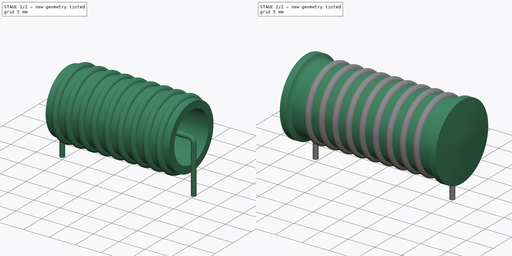
[diagram: build sequence overview — one tinted view per stage of 2, left to right]
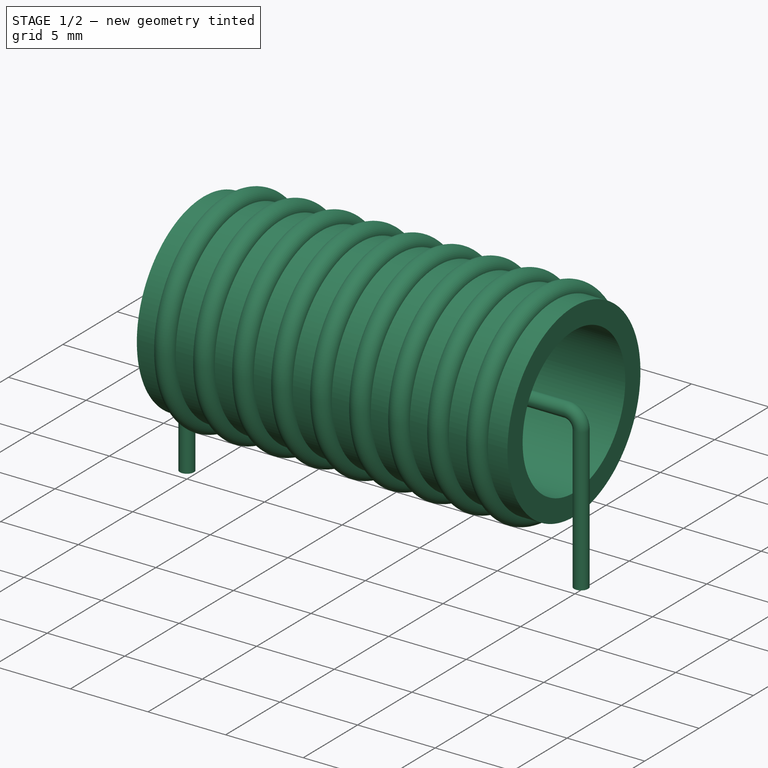
[diagram: stage 1 of 2 — iso view after this stage's code; geometry added in this stage tinted green]
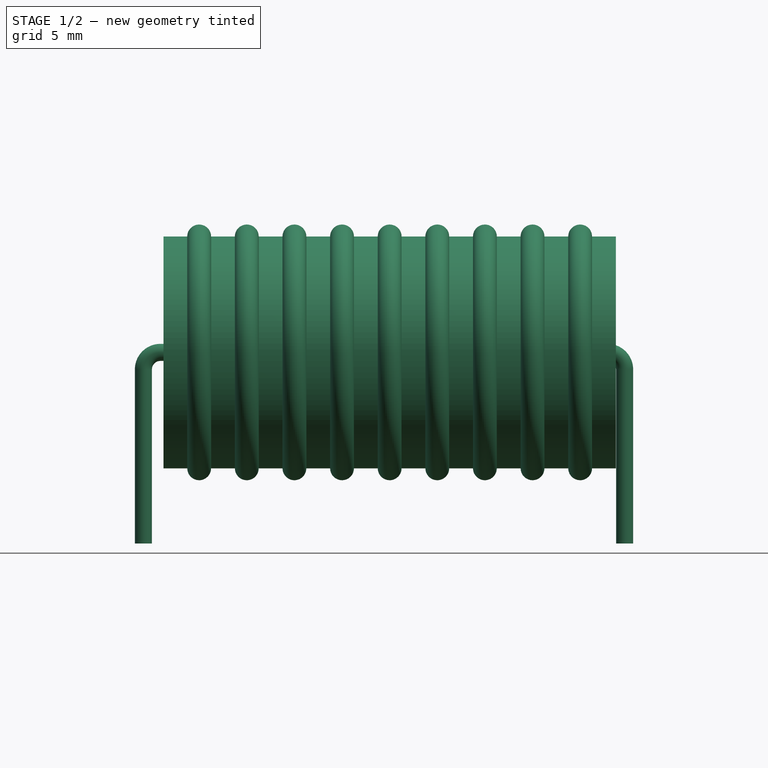
[diagram: stage 1 of 2 — front view after this stage's code; geometry added in this stage tinted green]
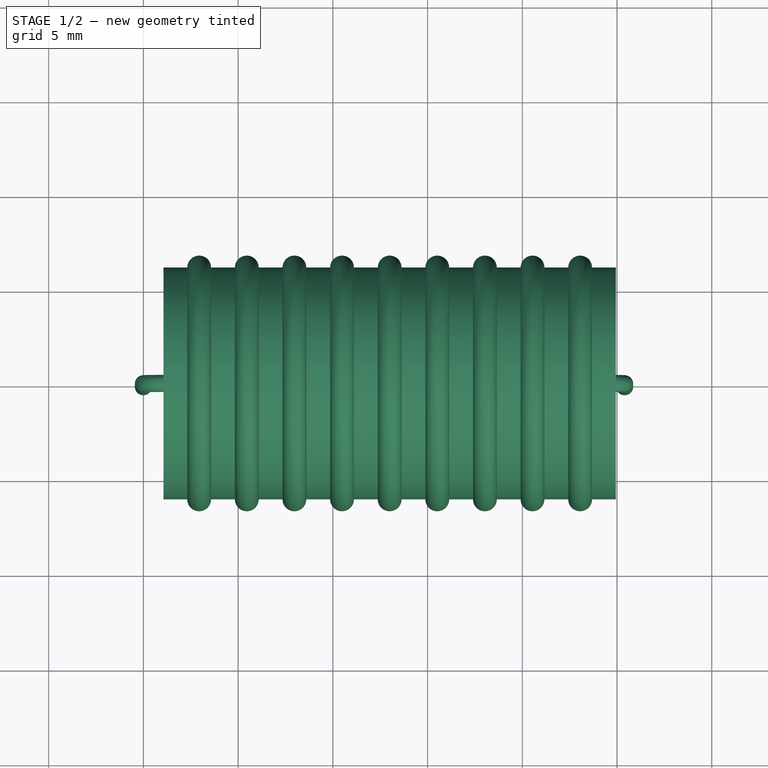
[diagram: stage 1 of 2 — top view after this stage's code; geometry added in this stage tinted green]
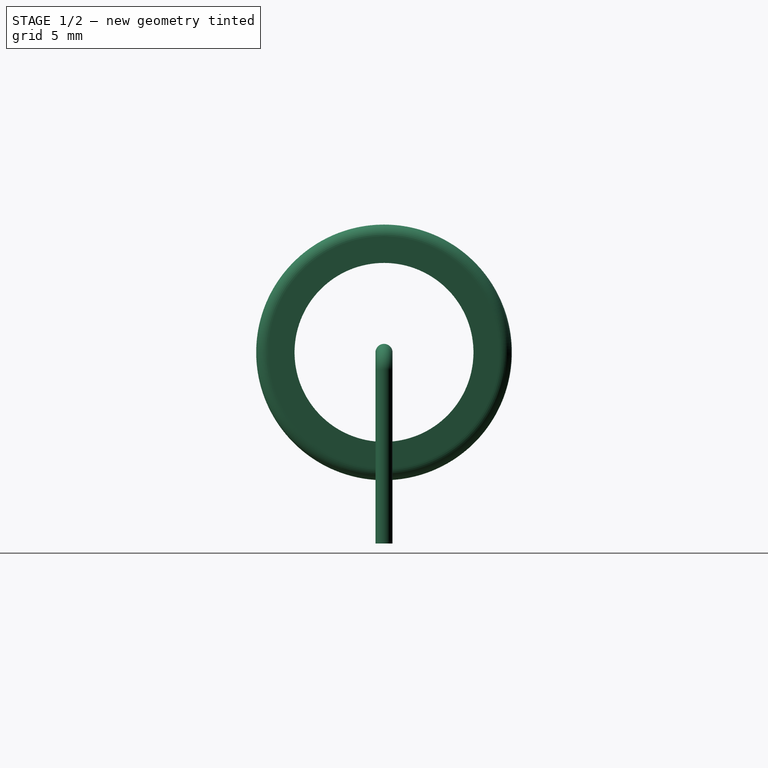
[diagram: stage 1 of 2 — right view after this stage's code; geometry added in this stage tinted green]
FCSTD DOCUMENT  (FreeCAD 0.16R6703 (Git))
Label: L_Axial_L29.9mm_D14.0mm_P25.40mm_Horizontal_Vishay_IHA-105
License: All rights reserved
LicenseURL: http://en.wikipedia.org/wiki/All_rights_reserved
objects: Sketcher::SketchObject×4, PartDesign::Revolution×2, Spreadsheet::Sheet×1, Part::Sweep×1
note: 9 computed .brp shape members not serialized (recipe doc carries the construction recipe); baked Part::Feature solids carry a one-line shape summary decoded from their .brp

FEATURE [Spreadsheet::Sheet] Spreadsheet  label="dimensions"
  cells = A1=L; B1(L)=29.85; A2=d; B2(d)=13.97; C2=0; A3=RM; B3(RM)=25.4; C3=0; A4=d_wire; B4(d_wire)=0.8999999999999999
FEATURE [Sketcher::SketchObject] Sketch
  Placement = pos=(0,0,-2) rot=(0,0,1;0rad)
  expr: Constraints[1] = dimensions.d_wire / 2
  sketch-geometry (1):
    g0: Circle CenterX=0 CenterY=0 CenterZ=0 NormalX=0 NormalY=0 NormalZ=1 Radius=0.45
  constraints (2):
    c: Coincident(g0,g-1)
    c: Radius(g0) = 0.45
FEATURE [Part::Sweep] Sweep
  Frenet = false
  Sections = -> [Sketch]
  Solid = true
  Spine = -> Sketch001
  Transition = 1
FEATURE [Sketcher::SketchObject] Sketch003  label="Axis001"
  Placement = pos=(0,0,0) rot=(1,0,0;1.5708rad)
  expr: Constraints[83] = dimensions.L * 0.8 / 19
  expr: Constraints[81] = dimensions.L * 0.8 / 19 / 2
  expr: Constraints[62] = dimensions.d / 2 - dimensions.L * 0.029
  expr: Constraints[70] = dimensions.d * 0.1
  expr: Constraints[78] = dimensions.L * 0.8 / 19 / 2
  expr: Constraints[6] = dimensions.d / 2 + 0.1
  expr: Constraints[72] = dimensions.L * 0.08500000000000001
  expr: Constraints[76] = dimensions.L * 0.8 / 19 / 2
  expr: Constraints[37] = dimensions.L * 0.8 / 19 / 2
  expr: Constraints[5] = (dimensions.RM - dimensions.L * 0.95) / 2
  expr: Constraints[75] = dimensions.L * 0.8 / 19 / 2
  expr: Constraints[80] = dimensions.L * 0.8 / 19 / 2
  expr: Constraints[79] = dimensions.L * 0.8 / 19 / 2
  expr: Constraints[82] = dimensions.L * 0.8 / 19 / 2
  expr: Constraints[77] = dimensions.L * 0.8 / 19 / 2
  sketch-geometry (26):
    g0: LineSegment [constr] StartX=-1.47875 StartY=7.085 StartZ=0 EndX=-1.47875 EndY=0 EndZ=0
    g1: LineSegment [constr] StartX=-1.47875 StartY=0 StartZ=0 EndX=0 EndY=0 EndZ=0
    g2: LineSegment [constr] StartX=106.607 StartY=-10.5398 StartZ=0 EndX=-91.3675 EndY=-10.5398 EndZ=0
    g3: LineSegment [constr] StartX=-1.47875 StartY=7.085 StartZ=0 EndX=7.92625 EndY=7.085 EndZ=0
    g4: ArcOfCircle CenterX=2.94376 CenterY=13.2043 CenterZ=0 NormalX=0 NormalY=0 NormalZ=1 Radius=0.628421 StartAngle=0 EndAngle=3.14159
    g5: ArcOfCircle CenterX=5.45745 CenterY=13.2043 CenterZ=0 NormalX=0 NormalY=0 NormalZ=1 Radius=0.628421 StartAngle=0 EndAngle=3.14159
    g6: ArcOfCircle CenterX=7.97113 CenterY=13.2043 CenterZ=0 NormalX=0 NormalY=0 NormalZ=1 Radius=0.628421 StartAngle=0 EndAngle=3.14159
    g7: ArcOfCircle CenterX=10.4848 CenterY=13.2043 CenterZ=0 NormalX=0 NormalY=0 NormalZ=1 Radius=0.628421 StartAngle=0 EndAngle=3.14159
    g8: ArcOfCircle CenterX=12.9985 CenterY=13.2043 CenterZ=0 NormalX=0 NormalY=0 NormalZ=1 Radius=0.628421 StartAngle=0 EndAngle=3.14159
    g9: ArcOfCircle CenterX=15.5122 CenterY=13.2043 CenterZ=0 NormalX=0 NormalY=0 NormalZ=1 Radius=0.628421 StartAngle=0 EndAngle=3.14159
    g10: ArcOfCircle CenterX=18.0259 CenterY=13.2043 CenterZ=0 NormalX=0 NormalY=0 NormalZ=1 Radius=0.628421 StartAngle=0 EndAngle=3.14159
    g11: ArcOfCircle CenterX=20.5396 CenterY=13.2043 CenterZ=0 NormalX=0 NormalY=0 NormalZ=1 Radius=0.628421 StartAngle=0 EndAngle=3.14159
    g12: ArcOfCircle CenterX=23.0532 CenterY=13.2043 CenterZ=0 NormalX=0 NormalY=0 NormalZ=1 Radius=0.628421 StartAngle=0 EndAngle=3.14159
    g13: LineSegment StartX=1.0585 StartY=13.2043 StartZ=0 EndX=2.31534 EndY=13.2043 EndZ=0
    g14: LineSegment StartX=3.57218 StartY=13.2043 StartZ=0 EndX=4.82903 EndY=13.2043 EndZ=0
    g15: LineSegment StartX=6.08587 StartY=13.2043 StartZ=0 EndX=7.34271 EndY=13.2043 EndZ=0
    g16: LineSegment StartX=8.59955 StartY=13.2043 StartZ=0 EndX=9.85639 EndY=13.2043 EndZ=0
    g17: LineSegment StartX=11.1132 StartY=13.2043 StartZ=0 EndX=12.3701 EndY=13.2043 EndZ=0
    g18: LineSegment StartX=13.6269 StartY=13.2043 StartZ=0 EndX=14.8838 EndY=13.2043 EndZ=0
    g19: LineSegment StartX=16.1406 StartY=13.2043 StartZ=0 EndX=17.3974 EndY=13.2043 EndZ=0
    g20: LineSegment StartX=18.6543 StartY=13.2043 StartZ=0 EndX=19.9111 EndY=13.2043 EndZ=0
    g21: LineSegment StartX=21.168 StartY=13.2043 StartZ=0 EndX=22.4248 EndY=13.2043 EndZ=0
    g22: LineSegment StartX=23.6817 StartY=13.2043 StartZ=0 EndX=24.9385 EndY=13.2043 EndZ=0
    g23: LineSegment StartX=1.0585 StartY=13.2043 StartZ=0 EndX=1.0585 EndY=11.8073 EndZ=0
    g24: LineSegment StartX=1.0585 StartY=11.8073 StartZ=0 EndX=24.9385 EndY=11.8073 EndZ=0
    g25: LineSegment StartX=24.9385 StartY=11.8073 StartZ=0 EndX=24.9385 EndY=13.2043 EndZ=0
  constraints (84):
    c: DistanceX(g0,g3) = 9.405
    c: Vertical(g0)
    c: Coincident(g1,g0)
    c: Coincident(g1,g-1)
    c: Horizontal(g1)
    c: DistanceX(g1,g1) = -1.47875
    c: DistanceY(g0,g0) = 7.085
    c: Coincident(g13,g4)
    c: Coincident(g14,g4)
    c: Coincident(g14,g5)
    c: Coincident(g15,g5)
    c: Coincident(g15,g6)
    c: Coincident(g16,g6)
    c: Coincident(g16,g7)
    c: Coincident(g17,g7)
    c: Coincident(g17,g8)
    c: Horizontal(g17)
    c: Coincident(g18,g8)
    c: Coincident(g18,g9)
    c: Coincident(g19,g9)
    c: Coincident(g19,g10)
    c: Coincident(g20,g11)
    c: Horizontal(g20)
    c: Coincident(g21,g11)
    c: Coincident(g21,g12)
    c: Horizontal(g21)
    c: Horizontal(g22)
    c: Equal(g14,g13)
    c: Equal(g13,g15)
    c: Equal(g15,g16)
    c: Equal(g16,g17)
    c: Equal(g17,g18)
    c: Equal(g18,g19)
    c: Equal(g19,g20)
    c: Equal(g20,g21)
    c: Equal(g21,g22)
    c: Coincident(g10,g20)
    c: Radius(g8) = 0.628421
    c: Coincident(g22,g12)
    c: Horizontal(g14)
    c: Horizontal(g15)
    c: Horizontal(g16)
    c: Horizontal(g18)
    c: Horizontal(g19)
    c: DistanceY(g12,g12) = 0
    c: DistanceY(g11,g11) = 0
    c: DistanceY(g10,g10) = 0
    c: DistanceY(g9,g9) = 0
    c: DistanceY(g8,g8) = 0
    c: DistanceY(g7,g7) = 0
    c: DistanceY(g4,g4) = 0
    c: DistanceY(g5,g5) = 0
    c: DistanceY(g4,g4) = 0
    c: DistanceY(g5,g5) = 0
    c: DistanceY(g6,g6) = 0
    c: DistanceY(g6,g6) = 0
    c: DistanceY(g7,g7) = 0
    c: DistanceY(g8,g8) = 0
    c: DistanceY(g9,g9) = 0
    c: DistanceY(g10,g10) = 0
    c: DistanceY(g11,g11) = 0
    c: DistanceY(g12,g12) = 0
    c: DistanceY(g0,g13) = 6.11935
    c: Horizontal(g13)
    c: Coincident(g23,g13)
    c: Vertical(g23)
    c: Horizontal(g24)
    c: Coincident(g25,g24)
    c: Coincident(g25,g22)
    c: Vertical(g25)
    c: DistanceY(g24,g22) = 1.397
    c: Coincident(g23,g24)
    c: DistanceX(g0,g23) = 2.53725
    c: Horizontal(g3)
    c: Coincident(g3,g0)
    c: Radius(g4) = 0.628421
    c: Radius(g5) = 0.628421
    c: Radius(g6) = 0.628421
    c: Radius(g7) = 0.628421
    c: Radius(g10) = 0.628421
    c: Radius(g9) = 0.628421
    c: Radius(g11) = 0.628421
    c: Radius(g12) = 0.628421
    c: DistanceX(g13,g13) = 1.25684
FEATURE [PartDesign::Revolution] Revolution001
  Angle = 360
  Axis = (9.405,0,0)
  Base = (-1.47875,0,7.085)
  Placement = pos=(0,0,0) rot=(1,0,0;1.5708rad)
  ReferenceAxis = -> Sketch003 [Axis3]
  Sketch = -> Sketch003
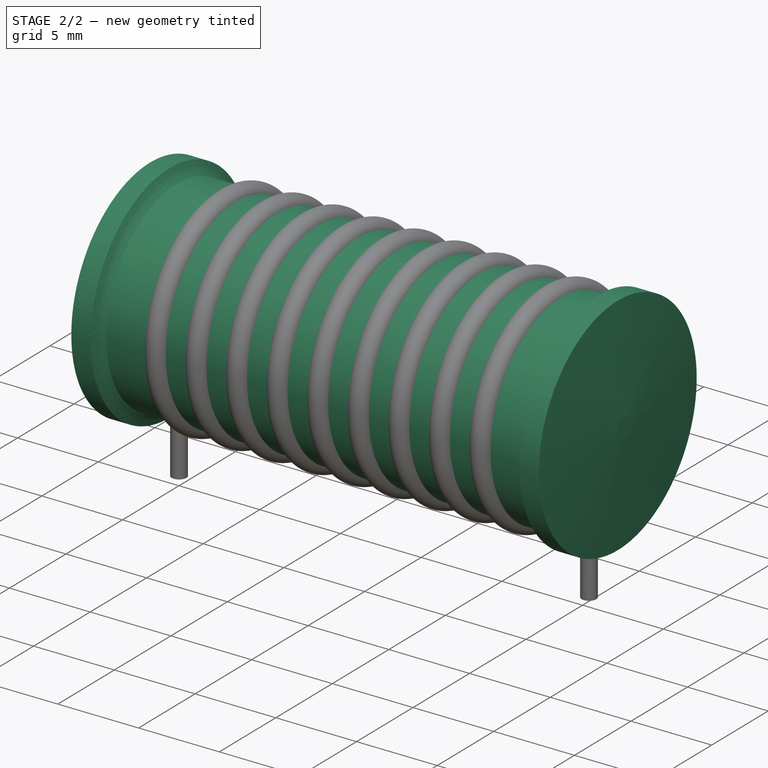
[diagram: stage 2 of 2 — iso view after this stage's code; geometry added in this stage tinted green]
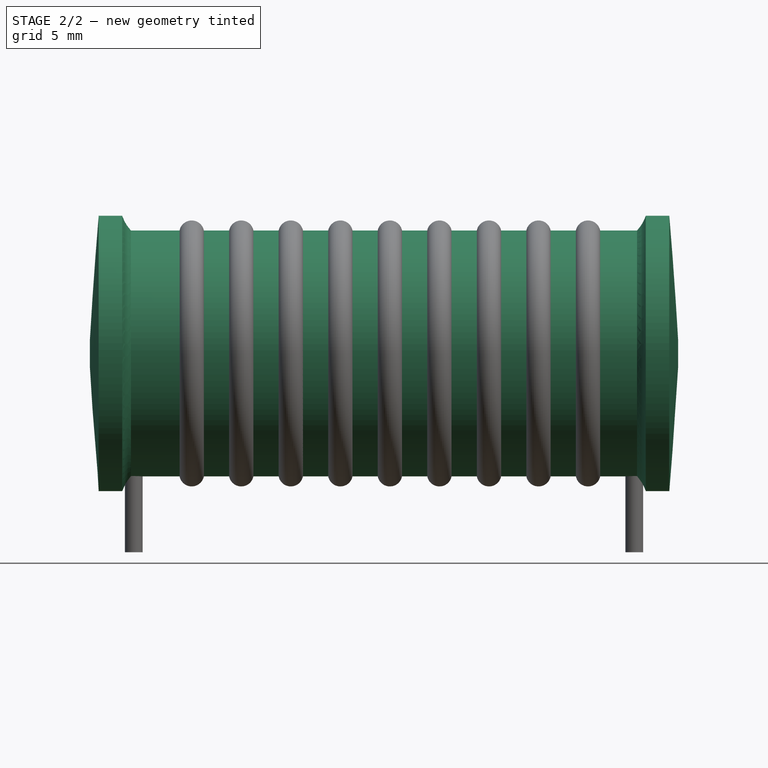
[diagram: stage 2 of 2 — front view after this stage's code; geometry added in this stage tinted green]
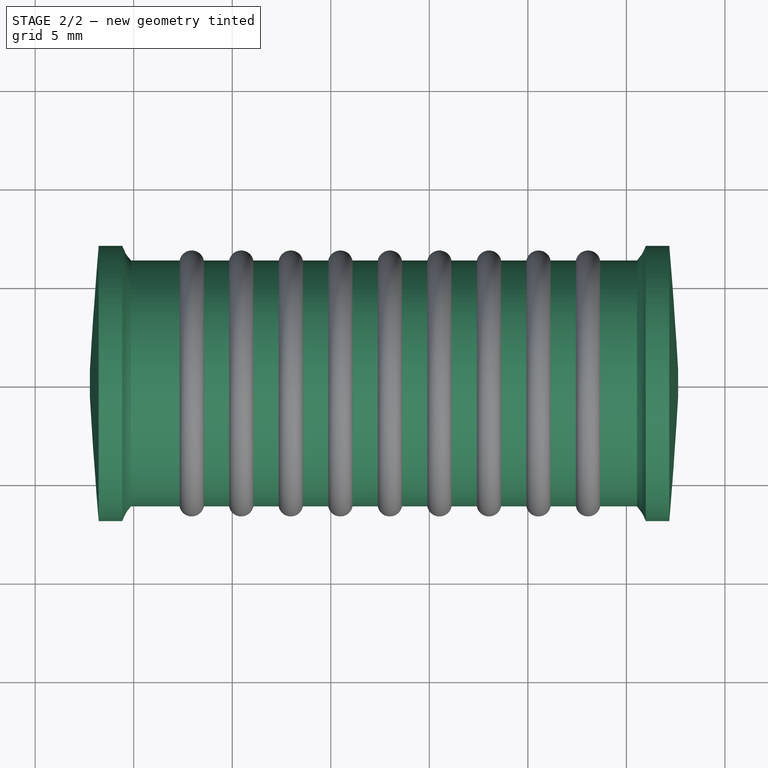
[diagram: stage 2 of 2 — top view after this stage's code; geometry added in this stage tinted green]
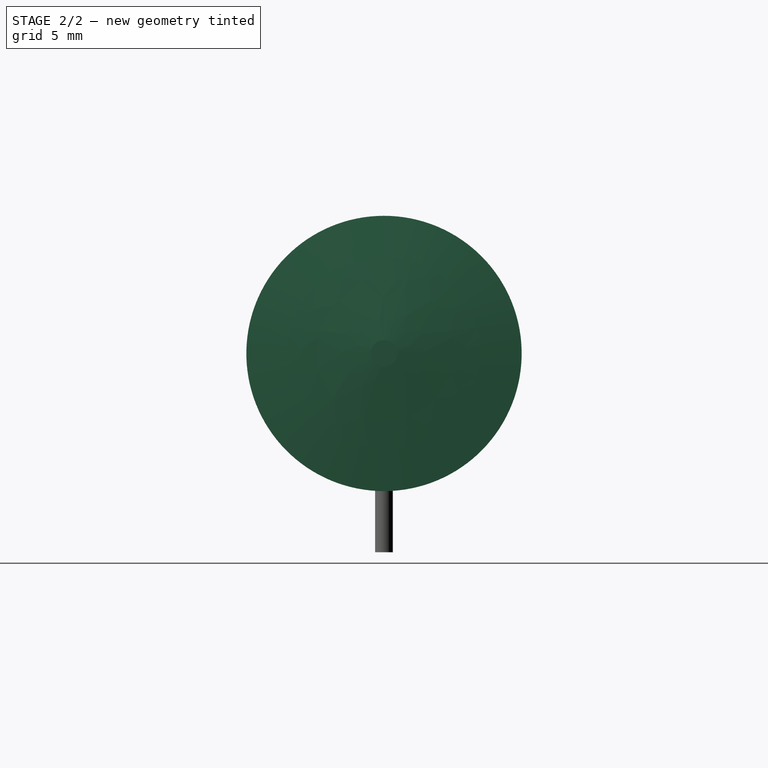
[diagram: stage 2 of 2 — right view after this stage's code; geometry added in this stage tinted green]
FEATURE [Sketcher::SketchObject] Sketch001
  Placement = pos=(0,0,0) rot=(1,0,0;1.5708rad)
  expr: Constraints[15] = dimensions.d_wire
  expr: Constraints[20] = dimensions.d_wire
  expr: Constraints[18] = dimensions.d / 2 + 0.1
  expr: Constraints[12] = dimensions.RM
  expr: Constraints[7] = dimensions.d_wire
  sketch-geometry (7):
    g0: LineSegment StartX=0 StartY=-3 StartZ=0 EndX=0 EndY=6.185 EndZ=0
    g1: ArcOfCircle CenterX=0.9 CenterY=6.185 CenterZ=0 NormalX=0 NormalY=0 NormalZ=1 Radius=0.9 StartAngle=1.5708 EndAngle=3.14159
    g2: LineSegment [constr] StartX=0 StartY=6.185 StartZ=0 EndX=0.9 EndY=6.185 EndZ=0
    g3: LineSegment [constr] StartX=0.9 StartY=6.185 StartZ=0 EndX=0.9 EndY=7.085 EndZ=0
    g4: LineSegment StartX=0.899993 StartY=7.085 StartZ=0 EndX=24.5 EndY=7.085 EndZ=0
    g5: LineSegment StartX=25.4 StartY=6.185 StartZ=0 EndX=25.4 EndY=-3 EndZ=0
    g6: ArcOfCircle CenterX=24.5 CenterY=6.185 CenterZ=0 NormalX=0 NormalY=0 NormalZ=1 Radius=0.9 StartAngle=0 EndAngle=1.5708
  constraints (23):
    c: Vertical(g0)
    c: Coincident(g1,g0)
    c: Coincident(g2,g0)
    c: Coincident(g2,g1)
    c: Horizontal(g2)
    c: Coincident(g3,g1)
    c: Vertical(g3)
    c: DistanceY(g3,g3) = 0.9
    c: Coincident(g4,g1)
    c: Horizontal(g4)
    c: Vertical(g5)
    c: Equal(g5,g0)
    c: DistanceX(g-1,g5) = 25.4
    c: Coincident(g6,g4)
    c: Coincident(g6,g5)
    c: DistanceX(g6,g5) = 0.9
    c: PointOnObject(g0,g-2)
    c: DistanceY(g0,g-1) = 3
    c: DistanceY(g-1,g1) = 7.085
    c: DistanceY(g0,g5) = 0
    c: DistanceX(g0,g1) = 0.9
    c: DistanceX(g6,g4) = 0
    c: DistanceY(g6,g5) = 0
FEATURE [Sketcher::SketchObject] Sketch002  label="Axis0"
  Placement = pos=(0,0,0) rot=(1,0,0;1.5708rad)
  expr: Constraints[6] = (dimensions.RM - dimensions.L) / 2
  expr: Constraints[37] = dimensions.L * 0.05
  expr: Constraints[8] = dimensions.d / 2
  expr: Constraints[25] = dimensions.d_wire * 0.75
  expr: Constraints[13] = dimensions.L * 0.04
  expr: Constraints[7] = dimensions.d / 2 + 0.1
  expr: Constraints[17] = dimensions.L * 0.025
  expr: Constraints[44] = Spreadsheet.L * (1 - 2 * 0.07000000000000001)
  expr: Constraints[15] = Spreadsheet.L * 0.015
  expr: Constraints[16] = dimensions.L * 0.015
  expr: Constraints[20] = 0.015 * Spreadsheet.L
  expr: Constraints[21] = dimensions.d / 2
  expr: Constraints[43] = dimensions.L * 0.05
  expr: Constraints[42] = Spreadsheet.L * 0.015
  expr: Constraints[41] = dimensions.L * 0.04
  sketch-geometry (15):
    g0: LineSegment [constr] StartX=-2.225 StartY=7.085 StartZ=0 EndX=27.625 EndY=7.085 EndZ=0
    g1: LineSegment [constr] StartX=-2.225 StartY=7.085 StartZ=0 EndX=-2.225 EndY=0 EndZ=0
    g2: LineSegment [constr] StartX=-2.225 StartY=0 StartZ=0 EndX=0 EndY=0 EndZ=0
    g3: LineSegment [constr] StartX=-1.77725 StartY=14.07 StartZ=0 EndX=-1.77725 EndY=7.085 EndZ=0
    g4: LineSegment StartX=-1.77725 StartY=14.07 StartZ=0 EndX=-0.58325 EndY=14.07 EndZ=0
    g5: ArcOfCircle CenterX=1.357 CenterY=14.7267 CenterZ=0 NormalX=0 NormalY=0 NormalZ=1 Radius=2.04837 StartAngle=3.46795 EndAngle=3.89607
    g6: ArcOfCircle CenterX=24.043 CenterY=14.7267 CenterZ=0 NormalX=0 NormalY=0 NormalZ=1 Radius=2.04837 StartAngle=5.52871 EndAngle=5.95683
    g7: LineSegment StartX=25.9833 StartY=14.07 StartZ=0 EndX=27.1773 EndY=14.07 EndZ=0
    g8: LineSegment [constr] StartX=240.326 StartY=-6.28023 StartZ=0 EndX=-214.926 EndY=-6.28023 EndZ=0
    g9: LineSegment StartX=-2.225 StartY=7.085 StartZ=0 EndX=27.625 EndY=7.085 EndZ=0
    g10: LineSegment StartX=-2.225 StartY=7.085 StartZ=0 EndX=-2.225 EndY=7.76 EndZ=0
    g11: ArcOfCircle CenterX=240.326 CenterY=-6.28023 CenterZ=0 NormalX=0 NormalY=0 NormalZ=1 Radius=242.957 StartAngle=3.05773 EndAngle=3.08377
    g12: LineSegment StartX=27.625 StartY=7.085 StartZ=0 EndX=27.625 EndY=7.76 EndZ=0
    g13: ArcOfCircle CenterX=-214.926 CenterY=-6.28023 CenterZ=0 NormalX=0 NormalY=0 NormalZ=1 Radius=242.957 StartAngle=0.0578212 EndAngle=0.0838589
    g14: LineSegment StartX=-0.1355 StartY=13.3238 StartZ=0 EndX=25.5355 EndY=13.3238 EndZ=0
  constraints (45):
    c: Horizontal(g0)
    c: Coincident(g1,g0)
    c: Vertical(g1)
    c: Coincident(g2,g1)
    c: Coincident(g2,g-1)
    c: Horizontal(g2)
    c: DistanceX(g2,g2) = -2.225
    c: DistanceY(g1,g1) = 7.085
    c: DistanceY(g3,g3) = 6.985
    c: PointOnObject(g3,g0)
    c: Perpendicular(g0,g3)
    c: Coincident(g4,g3)
    c: Horizontal(g4)
    c: DistanceX(g4,g4) = 1.194
    c: Coincident(g5,g4)
    c: DistanceX(g4,g5) = 0.44775
    c: DistanceX(g0,g3) = 0.44775
    c: DistanceY(g5,g4) = 0.74625
    c: Coincident(g7,g6)
    c: Horizontal(g7)
    c: DistanceX(g7,g0) = 0.44775
    c: DistanceY(g0,g6) = 6.985
    c: Parallel(g0,g8)
    c: Coincident(g9,g0)
    c: Vertical(g10)
    c: DistanceY(g10,g10) = 0.675
    c: Coincident(g11,g10)
    c: Coincident(g11,g3)
    c: Coincident(g11,g8)
    c: Coincident(g10,g0)
    c: Coincident(g12,g0)
    c: Vertical(g12)
    c: Equal(g12,g10)
    c: Coincident(g13,g12)
    c: Coincident(g13,g8)
    c: Coincident(g7,g13)
    c: Coincident(g9,g0)
    c: DistanceX(g5,g5) = 1.4925
    c: Horizontal(g14)
    c: Coincident(g14,g6)
    c: Coincident(g14,g5)
    c: DistanceX(g7,g7) = 1.194
    c: DistanceX(g6,g6) = 0.44775
    c: DistanceX(g6,g6) = 1.4925
    c: DistanceX(g14,g14) = 25.671
FEATURE [PartDesign::Revolution] Revolution
  Angle = 360
  Axis = (29.85,0,0)
  Base = (-2.225,0,7.085)
  Placement = pos=(0,0,0) rot=(1,0,0;1.5708rad)
  ReferenceAxis = -> Sketch002 [Axis0]
  Sketch = -> Sketch002
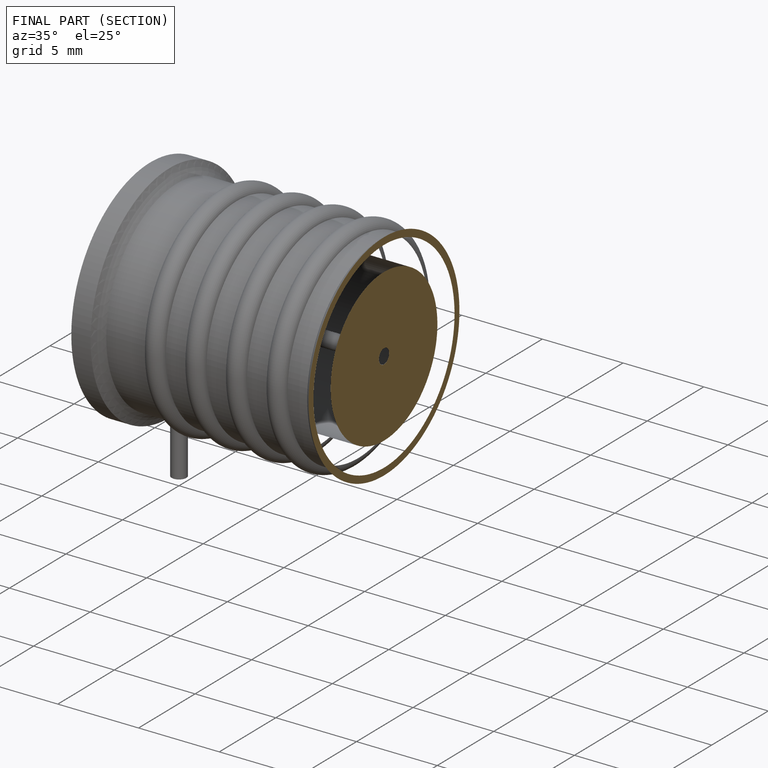
[diagram: finished part — half-section view (interior)]
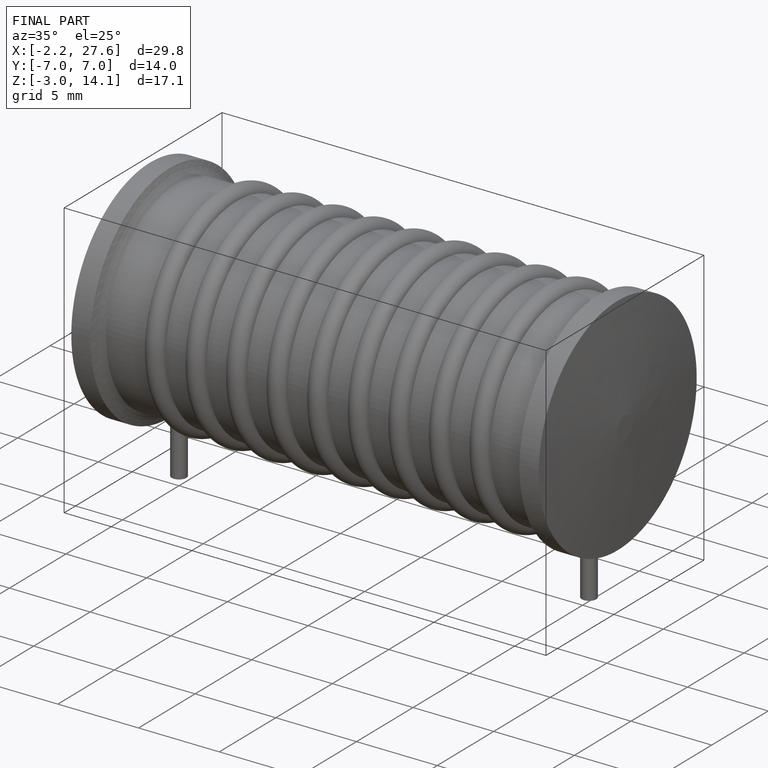
[diagram: finished part — iso view with bounding-box wireframe]
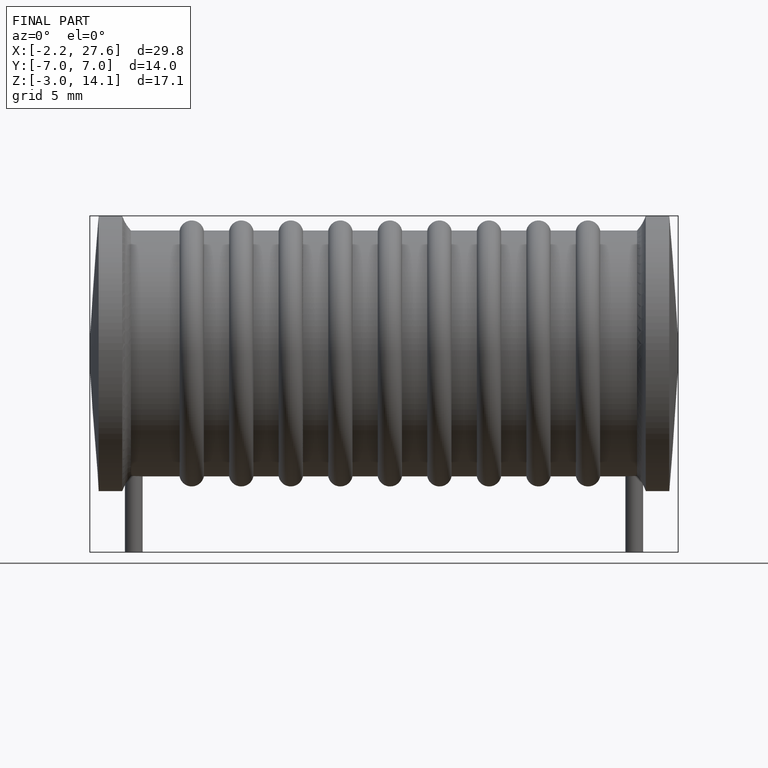
[diagram: finished part — front view with bounding-box wireframe]
